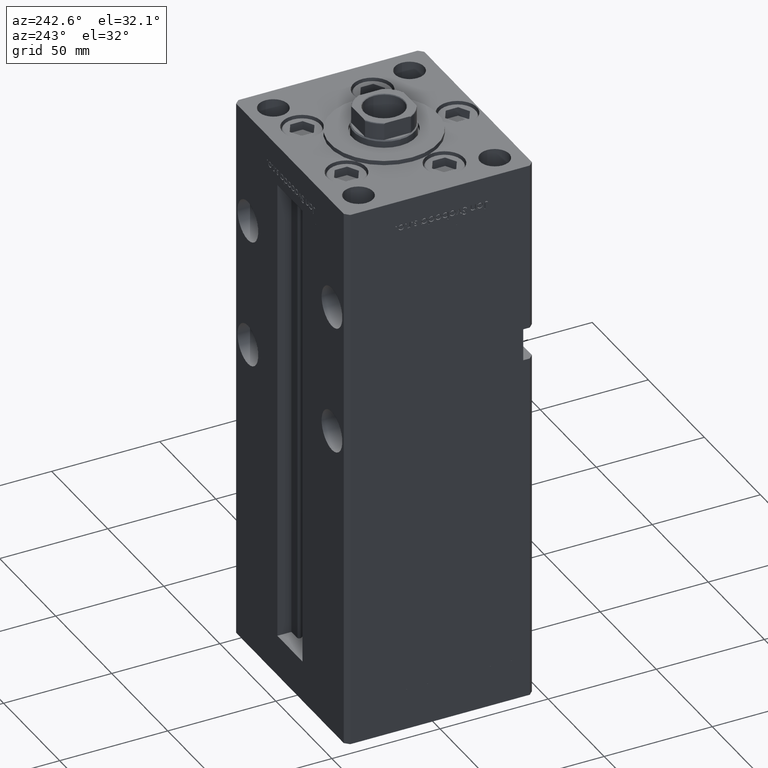
[diagram: clean part render]
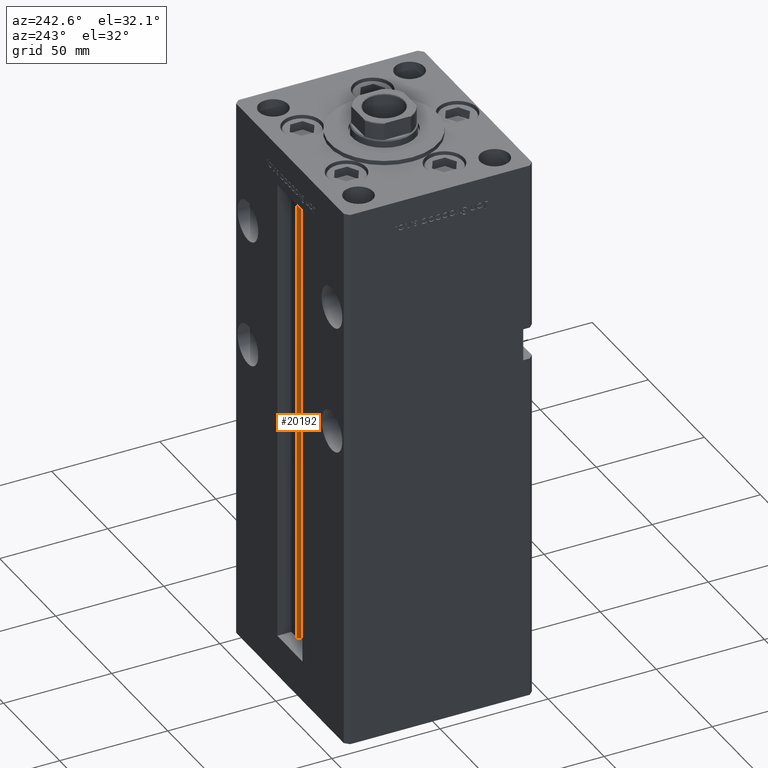
[diagram: same view with one face highlighted and labeled with its STEP entity id]
A machine part, auxiliary view. The second image highlights one B-rep face of the part: STEP entity #20192.
In plain terms, the highlighted cylindrical surface (edge-blend (fillet) strip) has radius 0.9333 mm, axis along (0, 0, 1).
Its self-contained STEP definition (entity closure, byte-faithful):
#1167 = ORIENTED_EDGE ( 'NONE', *, *, #31461, .T. ) ;
#4083 = CARTESIAN_POINT ( 'NONE',  ( 5.375042956467946276, 35.59999999999899245, 218.5000000000000000 ) ) ;
#5558 = DIRECTION ( 'NONE',  ( 1.000000000000000000, 0.000000000000000000, 0.000000000000000000 ) ) ;
#6579 = EDGE_CURVE ( 'NONE', #51118, #23635, #22495, .T. ) ;
#6600 = DIRECTION ( 'NONE',  ( 1.000000000000000000, 0.000000000000000000, 0.000000000000000000 ) ) ;
#7584 = CARTESIAN_POINT ( 'NONE',  ( 6.183333333333996151, 36.06666666666599497, 218.5000000000000000 ) ) ;
#10117 = CARTESIAN_POINT ( 'NONE',  ( 6.183333333333996151, 37.00000000000000000, 218.5000000000000000 ) ) ;
#10295 = ORIENTED_EDGE ( 'NONE', *, *, #6579, .F. ) ;
#11374 = DIRECTION ( 'NONE',  ( 1.000000000000000000, 0.000000000000000000, 0.000000000000000000 ) ) ;
#12982 = AXIS2_PLACEMENT_3D ( 'NONE', #7584, #48211, #11374 ) ;
#13142 = CARTESIAN_POINT ( 'NONE',  ( 5.375042956467944499, 35.59999999999899245, 0.000000000000000000 ) ) ;
#14760 = ORIENTED_EDGE ( 'NONE', *, *, #49489, .T. ) ;
#15606 = AXIS2_PLACEMENT_3D ( 'NONE', #31329, #25996, #5558 ) ;
#16775 = AXIS2_PLACEMENT_3D ( 'NONE', #23536, #35900, #6600 ) ;
#17708 = LINE ( 'NONE', #13142, #29730 ) ;
#20192 = ADVANCED_FACE ( 'NONE', ( #43436 ), #23803, .T. ) ;
#22495 = CIRCLE ( 'NONE', #15606, 0.9333333333339999260 ) ;
#23238 = LINE ( 'NONE', #31820, #52028 ) ;
#23425 = VERTEX_POINT ( 'NONE', #4083 ) ;
#23536 = CARTESIAN_POINT ( 'NONE',  ( 6.183333333333996151, 36.06666666666599497, 0.000000000000000000 ) ) ;
#23635 = VERTEX_POINT ( 'NONE', #28685 ) ;
#23803 = CYLINDRICAL_SURFACE ( 'NONE', #16775, 0.9333333333339999260 ) ;
#25284 = VERTEX_POINT ( 'NONE', #10117 ) ;
#25996 = DIRECTION ( 'NONE',  ( -0.000000000000000000, -0.000000000000000000, -1.000000000000000000 ) ) ;
#27784 = ORIENTED_EDGE ( 'NONE', *, *, #30690, .F. ) ;
#28685 = CARTESIAN_POINT ( 'NONE',  ( 6.183333333333996151, 37.00000000000000000, 0.000000000000000000 ) ) ;
#28697 = EDGE_LOOP ( 'NONE', ( #27784, #10295, #1167, #14760 ) ) ;
#29302 = CIRCLE ( 'NONE', #12982, 0.9333333333339999260 ) ;
#29730 = VECTOR ( 'NONE', #37604, 1000.000000000000000 ) ;
#30690 = EDGE_CURVE ( 'NONE', #23635, #25284, #23238, .T. ) ;
#31329 = CARTESIAN_POINT ( 'NONE',  ( 6.183333333333996151, 36.06666666666599497, 0.000000000000000000 ) ) ;
#31461 = EDGE_CURVE ( 'NONE', #51118, #23425, #17708, .T. ) ;
#31820 = CARTESIAN_POINT ( 'NONE',  ( 6.183333333333996151, 37.00000000000000000, 0.000000000000000000 ) ) ;
#35900 = DIRECTION ( 'NONE',  ( -0.000000000000000000, -0.000000000000000000, 1.000000000000000000 ) ) ;
#36028 = CARTESIAN_POINT ( 'NONE',  ( 5.375042956467944499, 35.59999999999899245, 0.000000000000000000 ) ) ;
#37604 = DIRECTION ( 'NONE',  ( -0.000000000000000000, -0.000000000000000000, 1.000000000000000000 ) ) ;
#40413 = DIRECTION ( 'NONE',  ( -0.000000000000000000, -0.000000000000000000, 1.000000000000000000 ) ) ;
#43436 = FACE_OUTER_BOUND ( 'NONE', #28697, .T. ) ;
#48211 = DIRECTION ( 'NONE',  ( 0.000000000000000000, 0.000000000000000000, -1.000000000000000000 ) ) ;
#49489 = EDGE_CURVE ( 'NONE', #23425, #25284, #29302, .T. ) ;
#51118 = VERTEX_POINT ( 'NONE', #36028 ) ;
#52028 = VECTOR ( 'NONE', #40413, 1000.000000000000000 ) ;